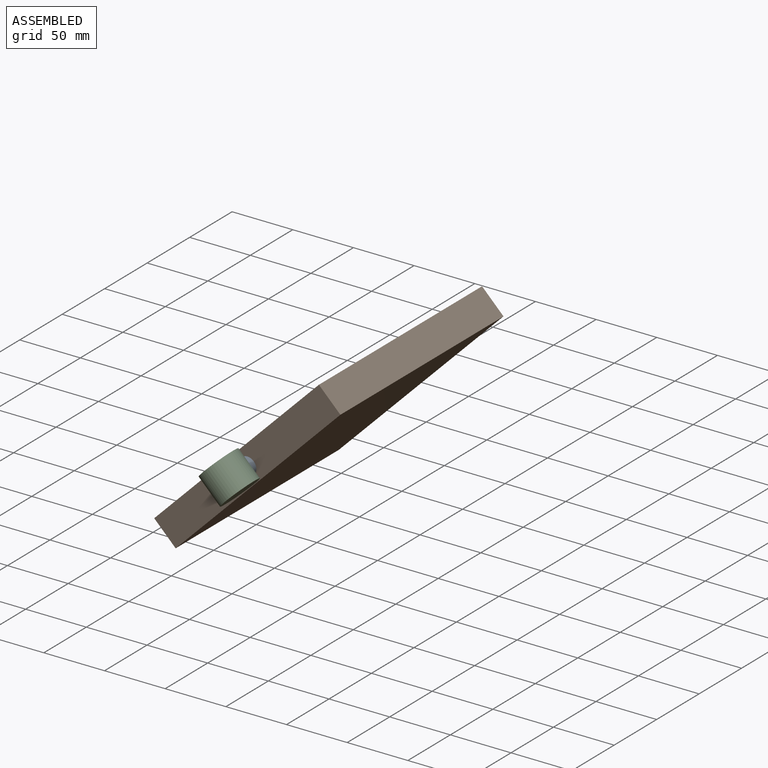
[diagram: assembled view]
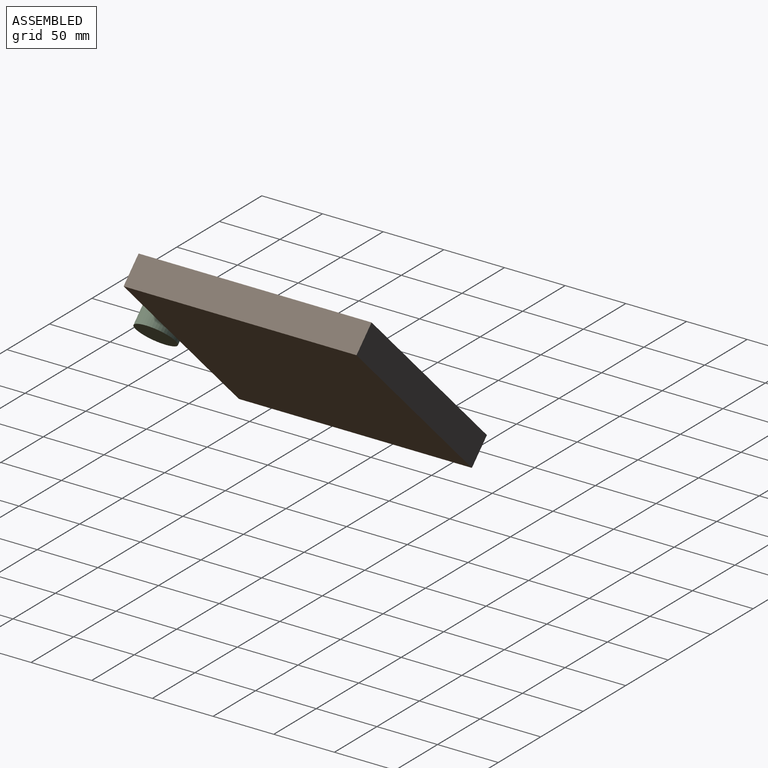
[diagram: assembled view, second angle]
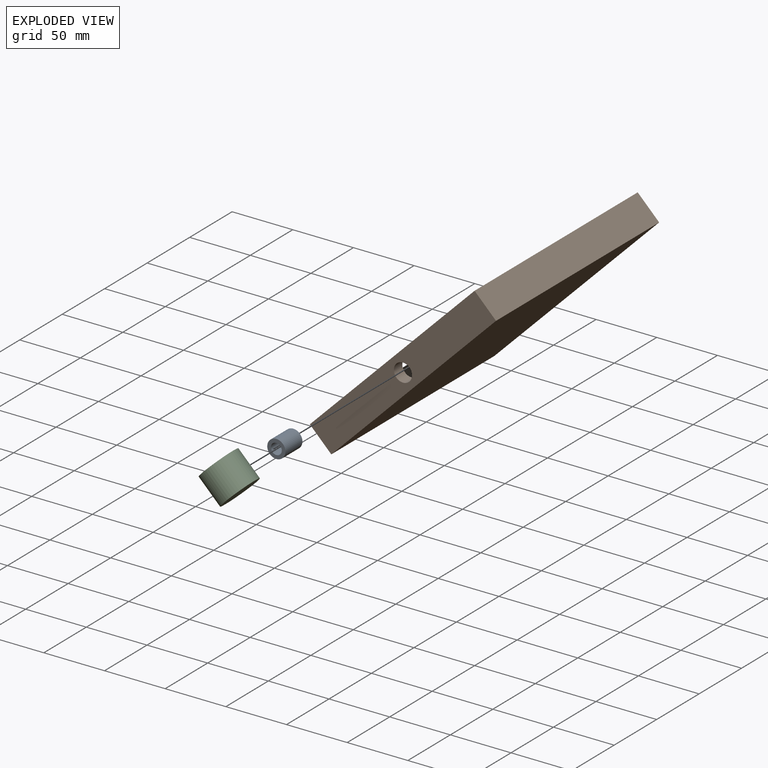
[diagram: exploded view]
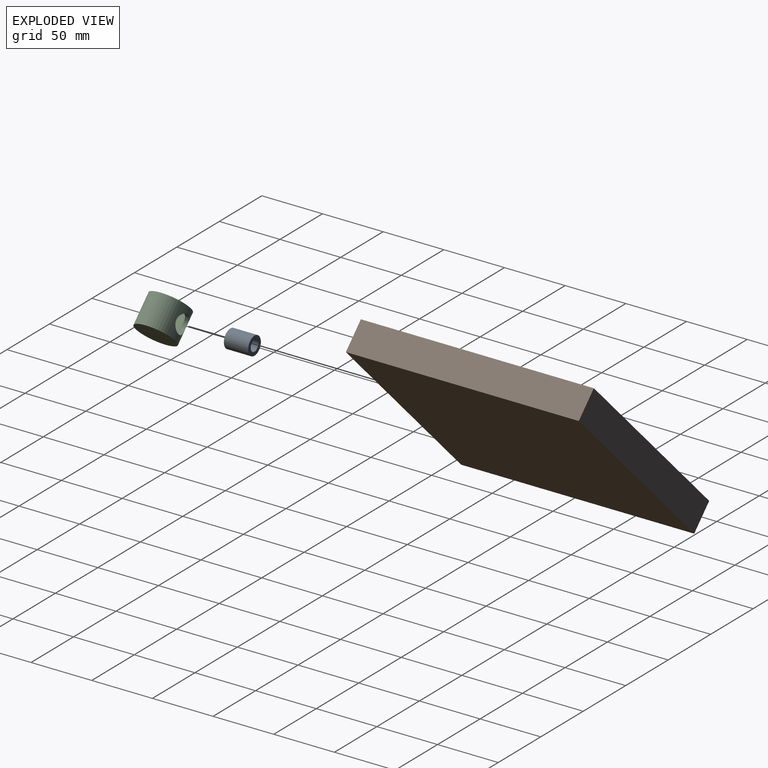
[diagram: exploded view, second angle]
ASSEMBLY  parts=3 mates=2
PART A: 4 faces, bbox 15x20x15 mm
  f0: cylinder r=4.5mm len=20mm, axis (0,1,0), area 565.5mm2, adj f2,f3
  f1: cylinder r=7.5mm len=20mm, axis (0,1,0), area 942.5mm2, adj f2,f3
  f2: plane 15x15mm, normal (0,-1,0), area 113.1mm2, adj f0,f1
  f3: plane 15x15mm, normal (0,1,0), area 113.1mm2, adj f0,f1
PART B: 17 faces, bbox 192x192x25 mm
  f0: plane 186x4mm, normal (0,-1,0), area 744mm2, adj f1,f7,f8,f14
  f1: plane 186x4mm, normal (-1,0,0), area 744mm2, adj f0,f2,f8,f14
  f2: plane 186x4mm, normal (0,1,0), area 744mm2, adj f1,f7,f8,f14
  f3: plane 192x25mm, normal (1,0,0), area 4623.3mm2, adj f4,f6,f8,f9,f16
  f4: plane 192x25mm, normal (0,1,0), area 4800mm2, adj f3,f5,f8,f9
  f5: plane 192x25mm, normal (-1,0,0), area 4800mm2, adj f4,f6,f8,f9
  f6: plane 192x25mm, normal (0,-1,0), area 4800mm2, adj f3,f5,f8,f9
  f7: plane 186x4mm, normal (1,0,0), area 744mm2, adj f0,f2,f8,f14
  f8: plane 192x192mm, normal (0,0,1), area 2268mm2, adj f0,f1,f2,f3,f4,f5,f6,f7
  f9: plane 192x192mm, normal (0,0,-1), area 36864mm2, adj f3,f4,f5,f6
  f10: plane 172x18mm, normal (0,-1,0), area 3096mm2, adj f11,f13,f14,f15
  f11: plane 172x18mm, normal (-1,0,0), area 2919.3mm2, adj f10,f12,f14,f15,f16
  f12: plane 172x18mm, normal (0,1,0), area 3096mm2, adj f11,f13,f14,f15
  f13: plane 172x18mm, normal (1,0,0), area 3096mm2, adj f10,f12,f14,f15
  f14: plane 186x186mm, normal (0,0,1), area 5012mm2, adj f0,f1,f2,f7,f10,f11,f12,f13
  f15: plane 172x172mm, normal (0,0,1), area 29584mm2, adj f10,f11,f12,f13
  f16: cylinder r=7.5mm len=15mm, axis (1,0,0), area 471.2mm2, adj f3,f11
PART C: 6 faces, bbox 25x33x33 mm
  f0: cylinder r=13.5mm len=27mm, axis (-1,0,0), area 1681.3mm2, adj f2,f4,f5
  f1: cylinder r=16.5mm len=33mm, axis (-1,0,0), area 2409.5mm2, adj f2,f3,f5
  f2: plane 33x33mm, normal (1,0,0), area 282.7mm2, adj f0,f1
  f3: plane 33x33mm, normal (-1,0,0), area 855.3mm2, adj f1
  f4: plane 27x27mm, normal (1,0,0), area 572.6mm2, adj f0
  f5: cylinder r=7.5mm len=15mm, axis (0,-1,0), area 151.8mm2, adj f0,f1
PLACE A rot(axis=(0,-1,0),45deg) t=(130.33,-71.03,25.64)mm
PLACE B rot(axis=(0.36,-0.36,-0.86),98.4deg) t=(100.93,25.37,55.04)mm
PLACE C rot(axis=(0,-1,0),135deg) t=(68.23,-91.75,22.33)mm
MATE fastened C.f5 <-> A.f0  axis (0,-1,0) through (92.09,-80.63,63.87)mm
MATE fastened B.f16 <-> A.f0  axis (0,-1,0) through (92.09,-60.63,63.87)mm
